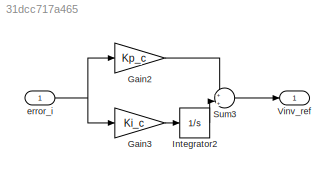
MODEL slx_31dcc717a465
KIND model
CONFIG AbsTol = auto
CONFIG EnableMultiTasking = off
CONFIG FixedStep = auto
CONFIG MaxStep = auto
CONFIG MinStep = auto
CONFIG RelTol = 1e-3
CONFIG SampleTimeConstraint = Unconstrained
CONFIG Solver = VariableStepAuto
CONFIG SolverName = VariableStepAuto
CONFIG StartTime = 0.0
CONFIG StopTime = 0.2
BLOCK [Gain] Gain2
  Gain = Kp_c
BLOCK [Gain] Gain3
  Gain = Ki_c
BLOCK [Integrator] Integrator2
  Ports = [1, 1]
BLOCK [Sum] Sum3
  Inputs = +|+
  Ports = [2, 1]
BLOCK [Outport] Vinv_ref
  OutDataTypeStr = double
  PortDimensions = 1
  SampleTime = 0
  SamplingMode = Sample based
  SignalType = real
BLOCK [Inport] error_i
  OutDataTypeStr = double
  PortDimensions = 1
  SampleTime = 0
  SamplingMode = Sample based
  SignalType = real
LINE Gain2:1 -> Sum3:1
LINE Gain3:1 -> Integrator2:1
LINE Integrator2:1 -> Sum3:2
LINE Sum3:1 -> Vinv_ref:1
NET error_i:1 -> Gain2:1, Gain3:1
note: NET lines group one-source signal fan-out (src -> all destinations, sorted); 1:1 wires keep LINE
